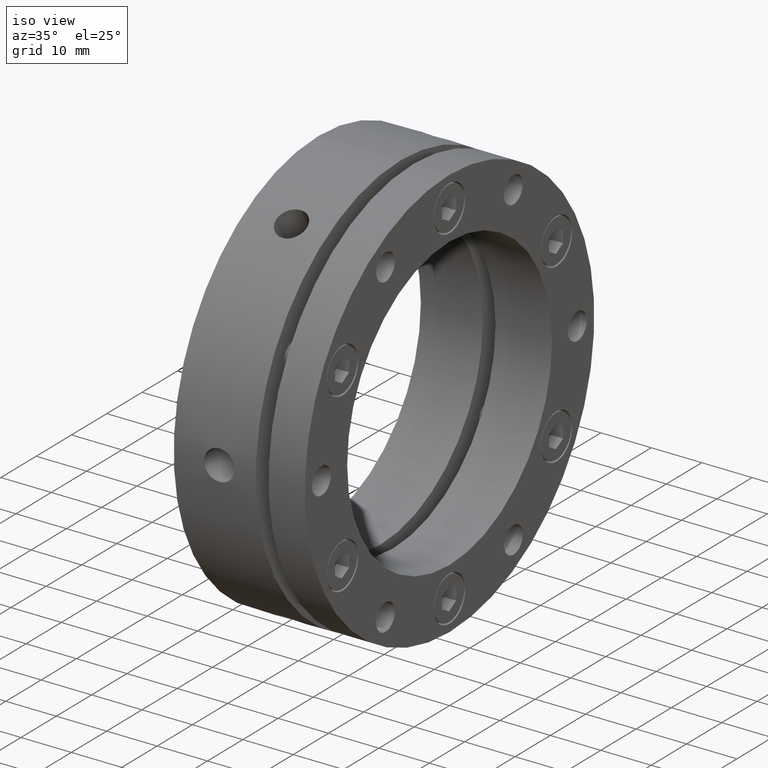
[diagram: clean part render]
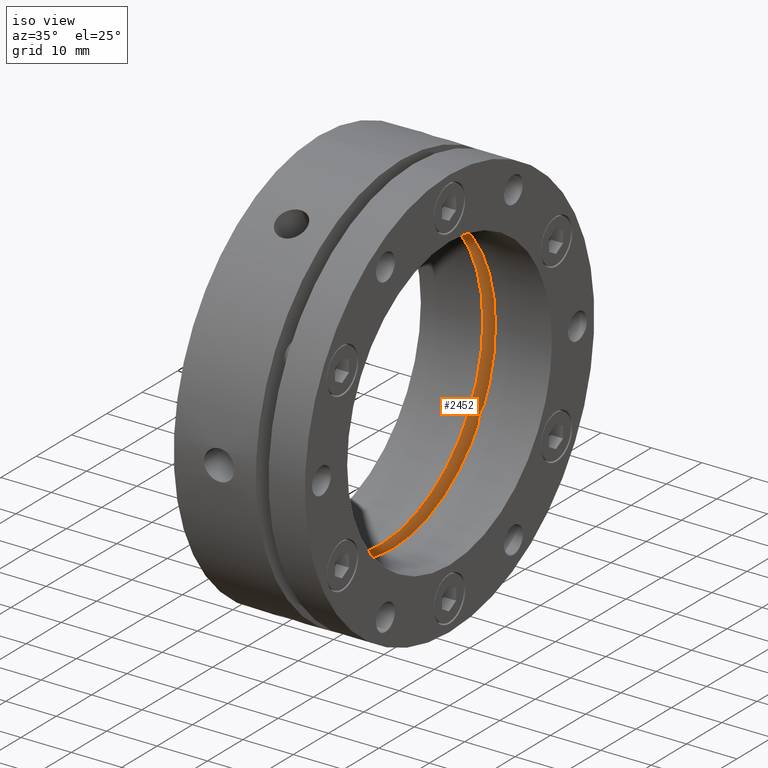
[diagram: same view with one face highlighted and labeled with its STEP entity id]
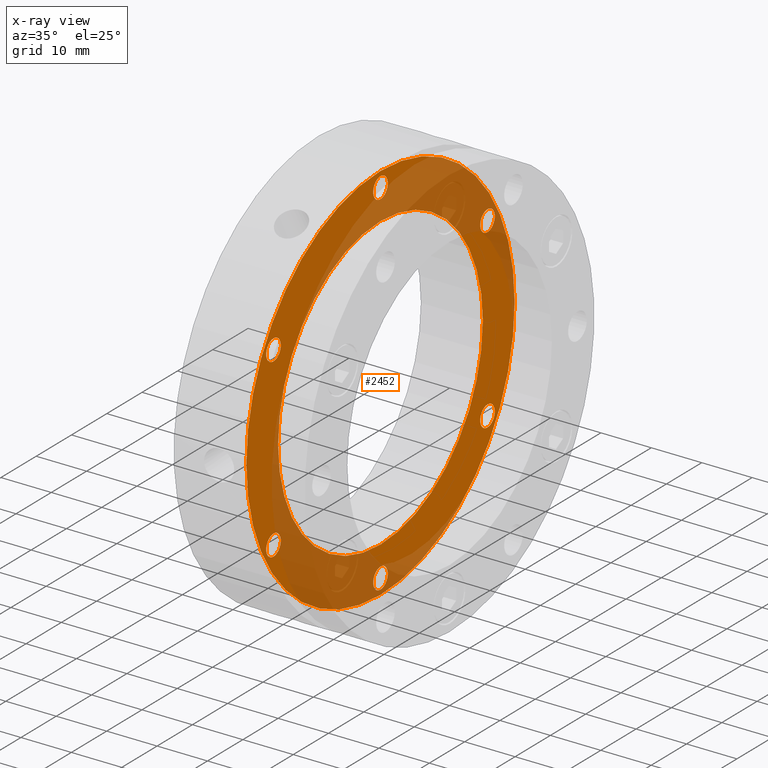
[diagram: x-ray of the same camera — body ghosted, the highlighted face saturated]
A machine part, iso view. The second image highlights one B-rep face of the part: STEP entity #2452.
The next image is the same camera in x-ray: the body ghosted, the highlighted face saturated — about 42% of this face is hidden behind the body in this view.
In plain terms, the highlighted planar face has unit normal (-1, 0, 0).
Its self-contained STEP definition (entity closure, byte-faithful):
#562 = DIRECTION ( 'NONE',  ( -1.000000000000000000, 0.0000000000000000000, 0.0000000000000000000 ) ) ;
#568 = CARTESIAN_POINT ( 'NONE',  ( 12.30000000000001500, 19.00000000000000400, 0.0000000000000000000 ) ) ;
#570 = PLANE ( 'NONE',  #993 ) ;
#572 = DIRECTION ( 'NONE',  ( 0.0000000000000000000, 0.0000000000000000000, 1.000000000000000000 ) ) ;
#993 = AXIS2_PLACEMENT_3D ( 'NONE', #568, #562, #572 ) ;
#1070 = AXIS2_PLACEMENT_3D ( 'NONE', #1619, #1620, #1621 ) ;
#1073 = AXIS2_PLACEMENT_3D ( 'NONE', #1636, #1637, #1638 ) ;
#1074 = AXIS2_PLACEMENT_3D ( 'NONE', #1642, #1643, #1644 ) ;
#1076 = AXIS2_PLACEMENT_3D ( 'NONE', #1652, #1653, #1654 ) ;
#1088 = AXIS2_PLACEMENT_3D ( 'NONE', #2182, #2183, #2184 ) ;
#1091 = AXIS2_PLACEMENT_3D ( 'NONE', #2195, #2196, #2197 ) ;
#1093 = AXIS2_PLACEMENT_3D ( 'NONE', #2204, #2205, #2206 ) ;
#1096 = AXIS2_PLACEMENT_3D ( 'NONE', #2254, #2255, #2256 ) ;
#1171 = AXIS2_PLACEMENT_3D ( 'NONE', #4261, #4262, #4263 ) ;
#1173 = AXIS2_PLACEMENT_3D ( 'NONE', #4267, #4268, #4269 ) ;
#1174 = AXIS2_PLACEMENT_3D ( 'NONE', #4270, #4271, #4272 ) ;
#1179 = AXIS2_PLACEMENT_3D ( 'NONE', #4285, #4286, #4287 ) ;
#1182 = AXIS2_PLACEMENT_3D ( 'NONE', #4294, #4295, #4296 ) ;
#1186 = AXIS2_PLACEMENT_3D ( 'NONE', #4306, #4307, #4308 ) ;
#1188 = AXIS2_PLACEMENT_3D ( 'NONE', #4312, #4313, #4314 ) ;
#1192 = AXIS2_PLACEMENT_3D ( 'NONE', #4324, #4325, #4326 ) ;
#1619 = CARTESIAN_POINT ( 'NONE',  ( 12.30000000000001500, 0.0000000000000000000, 35.00000000000001400 ) ) ;
#1620 = DIRECTION ( 'NONE',  ( -1.000000000000000000, 0.0000000000000000000, 0.0000000000000000000 ) ) ;
#1621 = DIRECTION ( 'NONE',  ( 0.0000000000000000000, 0.0000000000000000000, 1.000000000000000000 ) ) ;
#1636 = CARTESIAN_POINT ( 'NONE',  ( 12.30000000000001500, -30.31088913245536500, 17.50000000000001400 ) ) ;
#1637 = DIRECTION ( 'NONE',  ( -1.000000000000000000, 0.0000000000000000000, 0.0000000000000000000 ) ) ;
#1638 = DIRECTION ( 'NONE',  ( 0.0000000000000000000, 0.0000000000000000000, 1.000000000000000000 ) ) ;
#1642 = CARTESIAN_POINT ( 'NONE',  ( 12.30000000000001500, -30.31088913245537200, -17.50000000000000000 ) ) ;
#1643 = DIRECTION ( 'NONE',  ( -1.000000000000000000, 0.0000000000000000000, 0.0000000000000000000 ) ) ;
#1644 = DIRECTION ( 'NONE',  ( 0.0000000000000000000, 0.0000000000000000000, 1.000000000000000000 ) ) ;
#1652 = CARTESIAN_POINT ( 'NONE',  ( 12.30000000000001500, 30.31088913245538700, 17.49999999999998600 ) ) ;
#1653 = DIRECTION ( 'NONE',  ( -1.000000000000000000, 0.0000000000000000000, 0.0000000000000000000 ) ) ;
#1654 = DIRECTION ( 'NONE',  ( 0.0000000000000000000, 0.0000000000000000000, 1.000000000000000000 ) ) ;
#2014 = CARTESIAN_POINT ( 'NONE',  ( 12.30000000000001500, 2.531344933837580300E-016, 32.93300000000002100 ) ) ;
#2018 = CARTESIAN_POINT ( 'NONE',  ( 12.30000000000001500, 0.0000000000000000000, -29.00000000000000400 ) ) ;
#2020 = CARTESIAN_POINT ( 'NONE',  ( 12.30000000000001500, 3.551475717527324800E-015, 29.00000000000000400 ) ) ;
#2021 = CARTESIAN_POINT ( 'NONE',  ( 12.30000000000001500, 0.0000000000000000000, 37.06700000000001400 ) ) ;
#2022 = CARTESIAN_POINT ( 'NONE',  ( 12.30000000000001500, -30.31088913245536500, 15.43300000000001600 ) ) ;
#2025 = CARTESIAN_POINT ( 'NONE',  ( 12.30000000000001500, -30.31088913245536500, 19.56700000000001400 ) ) ;
#2027 = CARTESIAN_POINT ( 'NONE',  ( 12.30000000000001500, -30.31088913245537200, -19.56700000000000000 ) ) ;
#2031 = CARTESIAN_POINT ( 'NONE',  ( 12.30000000000001500, -30.31088913245537200, -15.43300000000000200 ) ) ;
#2032 = CARTESIAN_POINT ( 'NONE',  ( 12.30000000000001500, -6.408203506616242300E-015, -37.06700000000001400 ) ) ;
#2036 = CARTESIAN_POINT ( 'NONE',  ( 12.30000000000001500, -6.661337999999999900E-015, -32.93300000000002100 ) ) ;
#2037 = CARTESIAN_POINT ( 'NONE',  ( 12.30000000000001500, 30.31088913245535800, -19.56700000000002500 ) ) ;
#2040 = CARTESIAN_POINT ( 'NONE',  ( 12.30000000000001500, 30.31088913245535800, -15.43300000000002600 ) ) ;
#2041 = CARTESIAN_POINT ( 'NONE',  ( 12.30000000000001500, 30.31088913245538700, 15.43299999999998600 ) ) ;
#2044 = CARTESIAN_POINT ( 'NONE',  ( 12.30000000000001500, 30.31088913245538700, 19.56699999999998200 ) ) ;
#2091 = CARTESIAN_POINT ( 'NONE',  ( 12.30000000000000800, 4.653657836759942700E-015, -38.00000000000000700 ) ) ;
#2092 = CARTESIAN_POINT ( 'NONE',  ( 12.30000000000000800, 0.0000000000000000000, 38.00000000000000700 ) ) ;
#2182 = CARTESIAN_POINT ( 'NONE',  ( 12.30000000000001500, -6.661337999999999900E-015, -35.00000000000001400 ) ) ;
#2183 = DIRECTION ( 'NONE',  ( -1.000000000000000000, 0.0000000000000000000, 0.0000000000000000000 ) ) ;
#2184 = DIRECTION ( 'NONE',  ( 0.0000000000000000000, 0.0000000000000000000, 1.000000000000000000 ) ) ;
#2195 = CARTESIAN_POINT ( 'NONE',  ( 12.30000000000001500, 0.0000000000000000000, 0.0000000000000000000 ) ) ;
#2196 = DIRECTION ( 'NONE',  ( -1.000000000000000000, -0.0000000000000000000, -0.0000000000000000000 ) ) ;
#2197 = DIRECTION ( 'NONE',  ( 0.0000000000000000000, 0.0000000000000000000, -1.000000000000000000 ) ) ;
#2204 = CARTESIAN_POINT ( 'NONE',  ( 12.30000000000001500, 30.31088913245535800, -17.50000000000002500 ) ) ;
#2205 = DIRECTION ( 'NONE',  ( -1.000000000000000000, 0.0000000000000000000, 0.0000000000000000000 ) ) ;
#2206 = DIRECTION ( 'NONE',  ( 0.0000000000000000000, 0.0000000000000000000, 1.000000000000000000 ) ) ;
#2254 = CARTESIAN_POINT ( 'NONE',  ( 12.30000000000000800, 0.0000000000000000000, 0.0000000000000000000 ) ) ;
#2255 = DIRECTION ( 'NONE',  ( -1.000000000000000000, 0.0000000000000000000, 0.0000000000000000000 ) ) ;
#2256 = DIRECTION ( 'NONE',  ( 0.0000000000000000000, 0.0000000000000000000, 1.000000000000000000 ) ) ;
#2452 = ADVANCED_FACE ( 'NONE', ( #2726, #2729, #2725, #2724, #2727, #2730, #2731, #2732 ), #570, .F. ) ;
#2588 = EDGE_CURVE ( 'NONE', #3084, #3090, #3847, .T. ) ;
#2594 = EDGE_CURVE ( 'NONE', #3091, #3094, #3856, .T. ) ;
#2597 = EDGE_CURVE ( 'NONE', #3095, #3098, #3861, .T. ) ;
#2601 = EDGE_CURVE ( 'NONE', #3107, #3110, #3868, .T. ) ;
#2724 = FACE_BOUND ( 'NONE', #3299, .T. ) ;
#2725 = FACE_BOUND ( 'NONE', #3293, .T. ) ;
#2726 = FACE_BOUND ( 'NONE', #3302, .T. ) ;
#2727 = FACE_BOUND ( 'NONE', #3305, .T. ) ;
#2729 = FACE_BOUND ( 'NONE', #3298, .T. ) ;
#2730 = FACE_BOUND ( 'NONE', #3297, .T. ) ;
#2731 = FACE_BOUND ( 'NONE', #3303, .T. ) ;
#2732 = FACE_OUTER_BOUND ( 'NONE', #3307, .T. ) ;
#3084 = VERTEX_POINT ( 'NONE', #2014 ) ;
#3088 = VERTEX_POINT ( 'NONE', #2018 ) ;
#3089 = VERTEX_POINT ( 'NONE', #2020 ) ;
#3090 = VERTEX_POINT ( 'NONE', #2021 ) ;
#3091 = VERTEX_POINT ( 'NONE', #2022 ) ;
#3094 = VERTEX_POINT ( 'NONE', #2025 ) ;
#3095 = VERTEX_POINT ( 'NONE', #2027 ) ;
#3098 = VERTEX_POINT ( 'NONE', #2031 ) ;
#3099 = VERTEX_POINT ( 'NONE', #2032 ) ;
#3102 = VERTEX_POINT ( 'NONE', #2036 ) ;
#3103 = VERTEX_POINT ( 'NONE', #2037 ) ;
#3106 = VERTEX_POINT ( 'NONE', #2040 ) ;
#3107 = VERTEX_POINT ( 'NONE', #2041 ) ;
#3110 = VERTEX_POINT ( 'NONE', #2044 ) ;
#3151 = VERTEX_POINT ( 'NONE', #2091 ) ;
#3152 = VERTEX_POINT ( 'NONE', #2092 ) ;
#3293 = EDGE_LOOP ( 'NONE', ( #4746, #4745 ) ) ;
#3297 = EDGE_LOOP ( 'NONE', ( #4740, #4739 ) ) ;
#3298 = EDGE_LOOP ( 'NONE', ( #4748, #4747 ) ) ;
#3299 = EDGE_LOOP ( 'NONE', ( #4744, #4743 ) ) ;
#3302 = EDGE_LOOP ( 'NONE', ( #4750, #4749 ) ) ;
#3303 = EDGE_LOOP ( 'NONE', ( #4738, #4737 ) ) ;
#3305 = EDGE_LOOP ( 'NONE', ( #4742, #4741 ) ) ;
#3307 = EDGE_LOOP ( 'NONE', ( #4736, #4735 ) ) ;
#3477 = CIRCLE ( 'NONE', #1171, 29.00000000000000400 ) ;
#3479 = CIRCLE ( 'NONE', #1173, 2.066999999999999300 ) ;
#3480 = CIRCLE ( 'NONE', #1174, 2.066999999999999300 ) ;
#3485 = CIRCLE ( 'NONE', #1179, 2.066999999999999300 ) ;
#3488 = CIRCLE ( 'NONE', #1182, 2.066999999999999300 ) ;
#3492 = CIRCLE ( 'NONE', #1186, 2.066999999999999300 ) ;
#3494 = CIRCLE ( 'NONE', #1188, 2.066999999999999300 ) ;
#3498 = CIRCLE ( 'NONE', #1192, 38.00000000000000700 ) ;
#3847 = CIRCLE ( 'NONE', #1070, 2.066999999999999300 ) ;
#3856 = CIRCLE ( 'NONE', #1073, 2.066999999999999300 ) ;
#3861 = CIRCLE ( 'NONE', #1074, 2.066999999999999300 ) ;
#3868 = CIRCLE ( 'NONE', #1076, 2.066999999999999300 ) ;
#3929 = CIRCLE ( 'NONE', #1091, 29.00000000000000400 ) ;
#3934 = CIRCLE ( 'NONE', #1088, 2.066999999999999300 ) ;
#3939 = CIRCLE ( 'NONE', #1093, 2.066999999999999300 ) ;
#3947 = CIRCLE ( 'NONE', #1096, 38.00000000000000700 ) ;
#4261 = CARTESIAN_POINT ( 'NONE',  ( 12.30000000000001500, 0.0000000000000000000, 0.0000000000000000000 ) ) ;
#4262 = DIRECTION ( 'NONE',  ( -1.000000000000000000, -0.0000000000000000000, -0.0000000000000000000 ) ) ;
#4263 = DIRECTION ( 'NONE',  ( 0.0000000000000000000, 0.0000000000000000000, -1.000000000000000000 ) ) ;
#4267 = CARTESIAN_POINT ( 'NONE',  ( 12.30000000000001500, -30.31088913245537200, -17.50000000000000000 ) ) ;
#4268 = DIRECTION ( 'NONE',  ( -1.000000000000000000, 0.0000000000000000000, 0.0000000000000000000 ) ) ;
#4269 = DIRECTION ( 'NONE',  ( 0.0000000000000000000, 0.0000000000000000000, 1.000000000000000000 ) ) ;
#4270 = CARTESIAN_POINT ( 'NONE',  ( 12.30000000000001500, 0.0000000000000000000, 35.00000000000001400 ) ) ;
#4271 = DIRECTION ( 'NONE',  ( -1.000000000000000000, 0.0000000000000000000, 0.0000000000000000000 ) ) ;
#4272 = DIRECTION ( 'NONE',  ( 0.0000000000000000000, 0.0000000000000000000, 1.000000000000000000 ) ) ;
#4285 = CARTESIAN_POINT ( 'NONE',  ( 12.30000000000001500, 30.31088913245538700, 17.49999999999998600 ) ) ;
#4286 = DIRECTION ( 'NONE',  ( -1.000000000000000000, 0.0000000000000000000, 0.0000000000000000000 ) ) ;
#4287 = DIRECTION ( 'NONE',  ( 0.0000000000000000000, 0.0000000000000000000, 1.000000000000000000 ) ) ;
#4294 = CARTESIAN_POINT ( 'NONE',  ( 12.30000000000001500, 30.31088913245535800, -17.50000000000002500 ) ) ;
#4295 = DIRECTION ( 'NONE',  ( -1.000000000000000000, 0.0000000000000000000, 0.0000000000000000000 ) ) ;
#4296 = DIRECTION ( 'NONE',  ( 0.0000000000000000000, 0.0000000000000000000, 1.000000000000000000 ) ) ;
#4306 = CARTESIAN_POINT ( 'NONE',  ( 12.30000000000001500, -30.31088913245536500, 17.50000000000001400 ) ) ;
#4307 = DIRECTION ( 'NONE',  ( -1.000000000000000000, 0.0000000000000000000, 0.0000000000000000000 ) ) ;
#4308 = DIRECTION ( 'NONE',  ( 0.0000000000000000000, 0.0000000000000000000, 1.000000000000000000 ) ) ;
#4312 = CARTESIAN_POINT ( 'NONE',  ( 12.30000000000001500, -6.661337999999999900E-015, -35.00000000000001400 ) ) ;
#4313 = DIRECTION ( 'NONE',  ( -1.000000000000000000, 0.0000000000000000000, 0.0000000000000000000 ) ) ;
#4314 = DIRECTION ( 'NONE',  ( 0.0000000000000000000, 0.0000000000000000000, 1.000000000000000000 ) ) ;
#4324 = CARTESIAN_POINT ( 'NONE',  ( 12.30000000000000800, 0.0000000000000000000, 0.0000000000000000000 ) ) ;
#4325 = DIRECTION ( 'NONE',  ( -1.000000000000000000, 0.0000000000000000000, 0.0000000000000000000 ) ) ;
#4326 = DIRECTION ( 'NONE',  ( 0.0000000000000000000, 0.0000000000000000000, 1.000000000000000000 ) ) ;
#4479 = EDGE_CURVE ( 'NONE', #3099, #3102, #3934, .T. ) ;
#4484 = EDGE_CURVE ( 'NONE', #3088, #3089, #3929, .T. ) ;
#4487 = EDGE_CURVE ( 'NONE', #3103, #3106, #3939, .T. ) ;
#4494 = EDGE_CURVE ( 'NONE', #3151, #3152, #3947, .T. ) ;
#4707 = EDGE_CURVE ( 'NONE', #3089, #3088, #3477, .T. ) ;
#4709 = EDGE_CURVE ( 'NONE', #3098, #3095, #3479, .T. ) ;
#4710 = EDGE_CURVE ( 'NONE', #3090, #3084, #3480, .T. ) ;
#4715 = EDGE_CURVE ( 'NONE', #3110, #3107, #3485, .T. ) ;
#4718 = EDGE_CURVE ( 'NONE', #3106, #3103, #3488, .T. ) ;
#4722 = EDGE_CURVE ( 'NONE', #3094, #3091, #3492, .T. ) ;
#4724 = EDGE_CURVE ( 'NONE', #3102, #3099, #3494, .T. ) ;
#4728 = EDGE_CURVE ( 'NONE', #3152, #3151, #3498, .T. ) ;
#4735 = ORIENTED_EDGE ( 'NONE', *, *, #4494, .F. ) ;
#4736 = ORIENTED_EDGE ( 'NONE', *, *, #4728, .F. ) ;
#4737 = ORIENTED_EDGE ( 'NONE', *, *, #2601, .T. ) ;
#4738 = ORIENTED_EDGE ( 'NONE', *, *, #4715, .T. ) ;
#4739 = ORIENTED_EDGE ( 'NONE', *, *, #4487, .T. ) ;
#4740 = ORIENTED_EDGE ( 'NONE', *, *, #4718, .T. ) ;
#4741 = ORIENTED_EDGE ( 'NONE', *, *, #4479, .T. ) ;
#4742 = ORIENTED_EDGE ( 'NONE', *, *, #4724, .T. ) ;
#4743 = ORIENTED_EDGE ( 'NONE', *, *, #2597, .T. ) ;
#4744 = ORIENTED_EDGE ( 'NONE', *, *, #4709, .T. ) ;
#4745 = ORIENTED_EDGE ( 'NONE', *, *, #2594, .T. ) ;
#4746 = ORIENTED_EDGE ( 'NONE', *, *, #4722, .T. ) ;
#4747 = ORIENTED_EDGE ( 'NONE', *, *, #2588, .T. ) ;
#4748 = ORIENTED_EDGE ( 'NONE', *, *, #4710, .T. ) ;
#4749 = ORIENTED_EDGE ( 'NONE', *, *, #4707, .T. ) ;
#4750 = ORIENTED_EDGE ( 'NONE', *, *, #4484, .T. ) ;